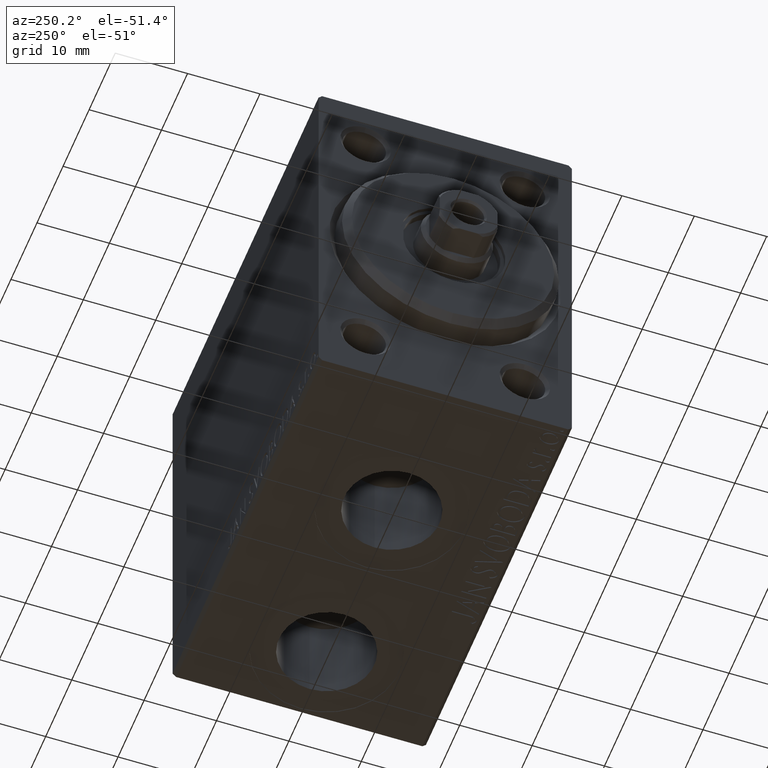
[diagram: clean part render]
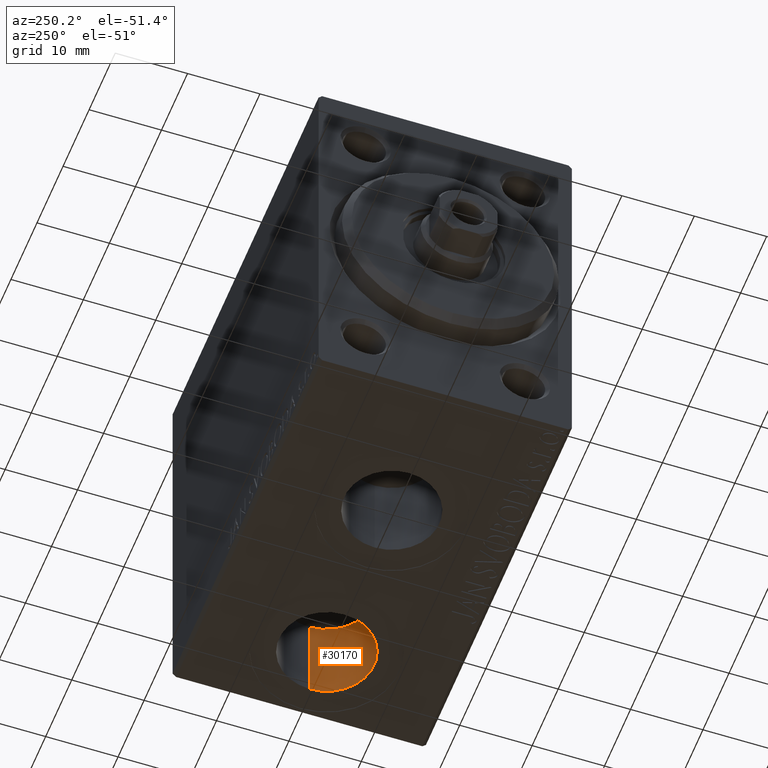
[diagram: same view with one face highlighted and labeled with its STEP entity id]
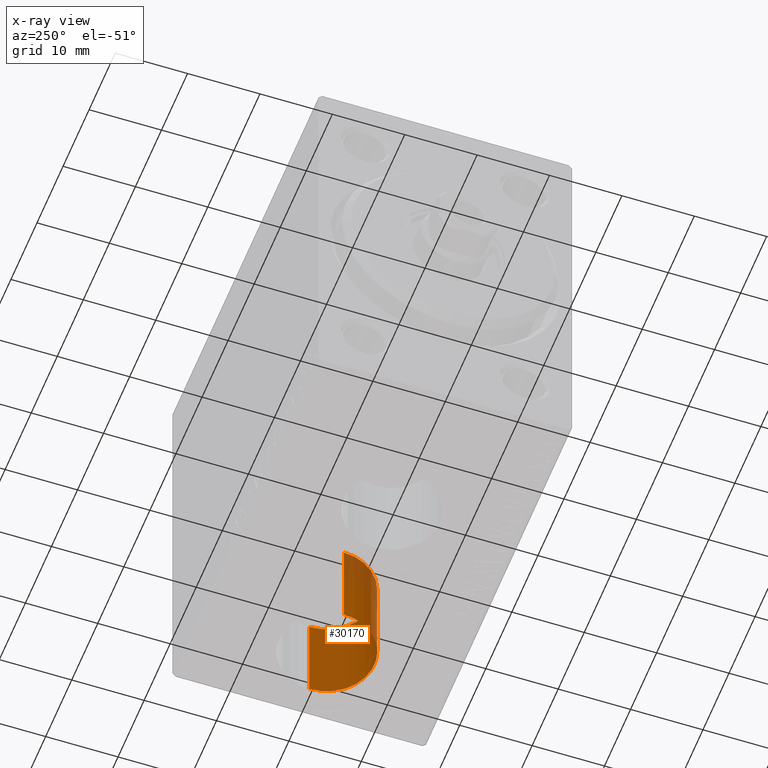
[diagram: x-ray of the same camera — body ghosted, the highlighted face saturated]
A machine part, auxiliary view. The second image highlights one B-rep face of the part: STEP entity #30170.
The next image is the same camera in x-ray: the body ghosted, the highlighted face saturated — about 13% of this face is hidden behind the body in this view.
In plain terms, the highlighted cylindrical surface (partial cylindrical patch) has radius 6.58 mm, axis along (-0, -0, -1).
Its self-contained STEP definition (entity closure, byte-faithful):
#221 = CARTESIAN_POINT ( 'NONE',  ( 38.91999999999999460, -5.788603209277299718E-15, -14.50000000000000711 ) ) ;
#544 = EDGE_CURVE ( 'NONE', #21835, #17664, #11210, .T. ) ;
#1031 = ORIENTED_EDGE ( 'NONE', *, *, #544, .F. ) ;
#1276 = AXIS2_PLACEMENT_3D ( 'NONE', #7521, #24543, #21551 ) ;
#3466 = VECTOR ( 'NONE', #42047, 1000.000000000000000 ) ;
#4545 = CARTESIAN_POINT ( 'NONE',  ( 52.07999999999999829, -4.982785615438341465E-15, -27.40000000000000924 ) ) ;
#5953 = LINE ( 'NONE', #26430, #36378 ) ;
#7302 = VERTEX_POINT ( 'NONE', #16828 ) ;
#7521 = CARTESIAN_POINT ( 'NONE',  ( 45.50000000000000000, -5.788603209277299718E-15, -27.40000000000000924 ) ) ;
#11210 = CIRCLE ( 'NONE', #27432, 6.580000000000002736 ) ;
#13398 = CARTESIAN_POINT ( 'NONE',  ( 45.50000000000000000, -5.788603209277299718E-15, -14.50000000000000711 ) ) ;
#13699 = DIRECTION ( 'NONE',  ( -1.000000000000000000, 0.000000000000000000, 0.000000000000000000 ) ) ;
#14143 = DIRECTION ( 'NONE',  ( 0.000000000000000000, 0.000000000000000000, -1.000000000000000000 ) ) ;
#16481 = CARTESIAN_POINT ( 'NONE',  ( 52.07999999999999829, -4.982785615438341465E-15, -14.50000000000000711 ) ) ;
#16828 = CARTESIAN_POINT ( 'NONE',  ( 38.91999999999999460, -5.788603209277299718E-15, -27.40000000000000924 ) ) ;
#17289 = CYLINDRICAL_SURFACE ( 'NONE', #34136, 6.580000000000002736 ) ;
#17664 = VERTEX_POINT ( 'NONE', #221 ) ;
#21551 = DIRECTION ( 'NONE',  ( -1.000000000000000000, 0.000000000000000000, 0.000000000000000000 ) ) ;
#21743 = CARTESIAN_POINT ( 'NONE',  ( 45.50000000000000000, -5.788603209277299718E-15, -14.50000000000000711 ) ) ;
#21835 = VERTEX_POINT ( 'NONE', #16481 ) ;
#21868 = CIRCLE ( 'NONE', #1276, 6.580000000000002736 ) ;
#23363 = ORIENTED_EDGE ( 'NONE', *, *, #38947, .T. ) ;
#23725 = ORIENTED_EDGE ( 'NONE', *, *, #38938, .T. ) ;
#23981 = DIRECTION ( 'NONE',  ( -0.000000000000000000, -0.000000000000000000, -1.000000000000000000 ) ) ;
#24543 = DIRECTION ( 'NONE',  ( 0.000000000000000000, 0.000000000000000000, -1.000000000000000000 ) ) ;
#26430 = CARTESIAN_POINT ( 'NONE',  ( 38.91999999999999460, -5.788603209277299718E-15, -14.50000000000000711 ) ) ;
#27432 = AXIS2_PLACEMENT_3D ( 'NONE', #21743, #14143, #13699 ) ;
#27994 = CARTESIAN_POINT ( 'NONE',  ( 52.07999999999999829, -4.982785615438341465E-15, -14.50000000000000711 ) ) ;
#30170 = ADVANCED_FACE ( 'NONE', ( #34797 ), #17289, .F. ) ;
#31431 = EDGE_CURVE ( 'NONE', #17664, #7302, #5953, .T. ) ;
#33804 = DIRECTION ( 'NONE',  ( -0.000000000000000000, -0.000000000000000000, -1.000000000000000000 ) ) ;
#34136 = AXIS2_PLACEMENT_3D ( 'NONE', #13398, #23981, #42387 ) ;
#34797 = FACE_OUTER_BOUND ( 'NONE', #34822, .T. ) ;
#34822 = EDGE_LOOP ( 'NONE', ( #1031, #23725, #23363, #36517 ) ) ;
#35021 = VERTEX_POINT ( 'NONE', #4545 ) ;
#36378 = VECTOR ( 'NONE', #33804, 1000.000000000000000 ) ;
#36517 = ORIENTED_EDGE ( 'NONE', *, *, #31431, .F. ) ;
#38938 = EDGE_CURVE ( 'NONE', #21835, #35021, #45517, .T. ) ;
#38947 = EDGE_CURVE ( 'NONE', #35021, #7302, #21868, .T. ) ;
#42047 = DIRECTION ( 'NONE',  ( -0.000000000000000000, -0.000000000000000000, -1.000000000000000000 ) ) ;
#42387 = DIRECTION ( 'NONE',  ( -1.000000000000000000, 0.000000000000000000, 0.000000000000000000 ) ) ;
#45517 = LINE ( 'NONE', #27994, #3466 ) ;